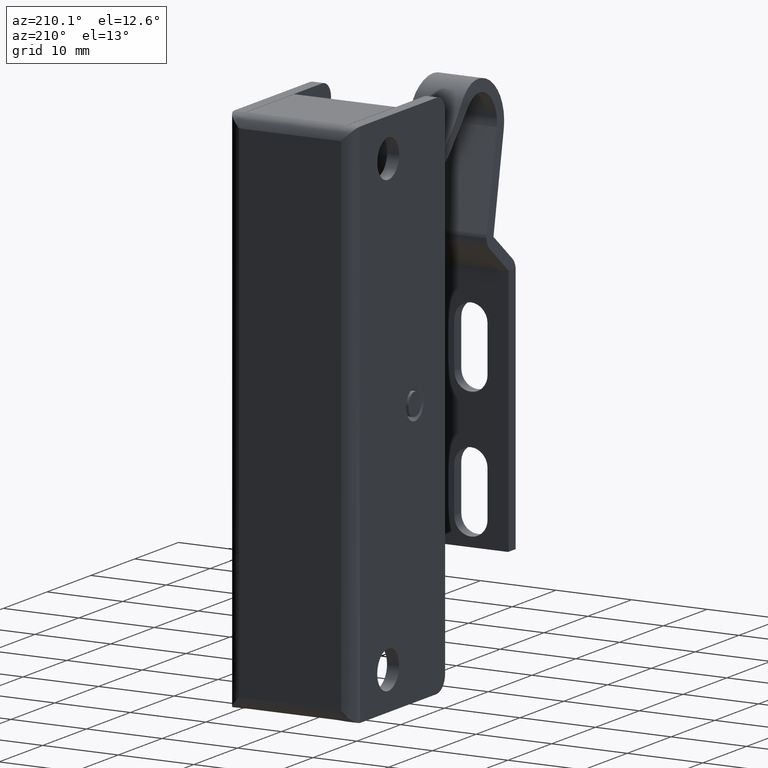
[diagram: clean part render]
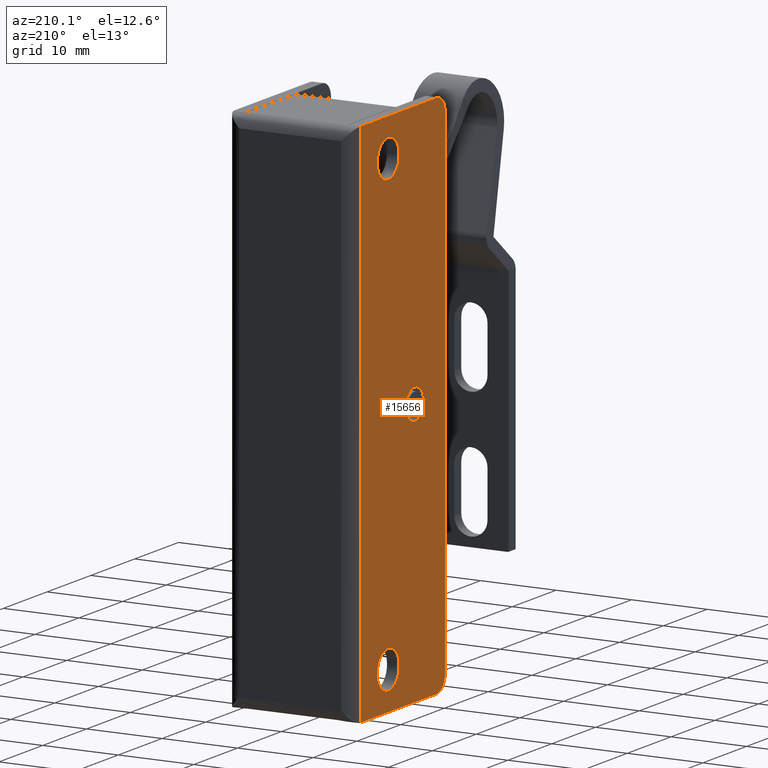
[diagram: same view with one face highlighted and labeled with its STEP entity id]
A machine part, auxiliary view. The second image highlights one B-rep face of the part: STEP entity #15656.
In plain terms, the highlighted face is a freeform B-spline surface patch.
Its self-contained STEP definition (entity closure, byte-faithful):
#12899=CARTESIAN_POINT('',(-8.349997138163136,-4.698172180155018,-31.426501191726430));
#12900=VERTEX_POINT('',#12899);
#12906=CARTESIAN_POINT('',(-8.349997000000000,-6.099989898817020,-31.999999999999869));
#12907=VERTEX_POINT('',#12906);
#12908=CARTESIAN_POINT('',(-8.349997000000000,-6.099989898817020,-31.999999999999869));
#12909=CARTESIAN_POINT('',(-8.349997012758033,-5.970545591312659,-32.000009622498652));
#12910=CARTESIAN_POINT('',(-8.349997043058892,-5.663109701976895,-31.970089592252030));
#12911=CARTESIAN_POINT('',(-8.349997091808977,-5.168486306564616,-31.801986612869548));
#12912=CARTESIAN_POINT('',(-8.349997123382835,-4.848134782484750,-31.574027292666059));
#12913=CARTESIAN_POINT('',(-8.349997138163136,-4.698172180155018,-31.426501191726430));
#12914=B_SPLINE_CURVE_WITH_KNOTS('',3,(#12908,#12909,#12910,#12911,#12912,#12913),.UNSPECIFIED.,.F.,.U.,(4,1,1,4),(0.000000020675283,0.388345068885007,0.922313248117772,1.553380213639104),.UNSPECIFIED.);
#12915=EDGE_CURVE('',#12907,#12900,#12914,.T.);
#12917=CARTESIAN_POINT('',(-8.349997000000000,-8.099991000000175,-30.0));
#12918=VERTEX_POINT('',#12917);
#12919=CARTESIAN_POINT('',(-8.349997000000000,-8.099991000000175,-30.0));
#12920=CARTESIAN_POINT('',(-8.349996999999993,-8.100013009584028,-30.163616665637559));
#12921=CARTESIAN_POINT('',(-8.349997000000005,-8.053625264757615,-30.539980292902229));
#12922=CARTESIAN_POINT('',(-8.349996999999995,-7.851269874938557,-31.012131816831321));
#12923=CARTESIAN_POINT('',(-8.349997000000013,-7.557804929037799,-31.387965984165881));
#12924=CARTESIAN_POINT('',(-8.349997000000020,-7.259038666332838,-31.645712925202599));
#12925=CARTESIAN_POINT('',(-8.349996999999938,-6.930001703225366,-31.832096633552879));
#12926=CARTESIAN_POINT('',(-8.349997000000066,-6.541757395190900,-31.965668954112690));
#12927=CARTESIAN_POINT('',(-8.349997000000000,-6.263613157622911,-32.000039405680162));
#12928=CARTESIAN_POINT('',(-8.349997000000000,-6.099989898817020,-31.999999999999869));
#12929=B_SPLINE_CURVE_WITH_KNOTS('',3,(#12919,#12920,#12921,#12922,#12923,#12924,#12925,#12926,#12927,#12928),.UNSPECIFIED.,.F.,.U.,(4,1,1,1,1,1,1,4),(0.000000053652055,0.490873591092241,1.129053579585303,1.521752345208165,1.914438454833785,2.307165020815178,2.650798572271524,3.141672109330512),.UNSPECIFIED.);
#12930=EDGE_CURVE('',#12918,#12907,#12929,.T.);
#12932=CARTESIAN_POINT('',(-8.349997000000000,-6.099992101182992,-28.000000000000121));
#12933=VERTEX_POINT('',#12932);
#12934=CARTESIAN_POINT('',(-8.349997000000000,-6.099992101182992,-28.000000000000121));
#12935=CARTESIAN_POINT('',(-8.349996999999991,-6.312715302987123,-27.999891509781541));
#12936=CARTESIAN_POINT('',(-8.349997000000018,-6.721711760098346,-28.065880508935329));
#12937=CARTESIAN_POINT('',(-8.349997000000009,-7.209274479763146,-28.311263626846149));
#12938=CARTESIAN_POINT('',(-8.349996999999947,-7.607652154405778,-28.654975880295481));
#12939=CARTESIAN_POINT('',(-8.349997000000103,-7.902957788096984,-29.074145410371809));
#12940=CARTESIAN_POINT('',(-8.349996999999915,-8.069392496460544,-29.558215666745308));
#12941=CARTESIAN_POINT('',(-8.349997000000069,-8.100001891721069,-29.869107116433991));
#12942=CARTESIAN_POINT('',(-8.349997000000000,-8.099991000000175,-30.0));
#12943=B_SPLINE_CURVE_WITH_KNOTS('',3,(#12934,#12935,#12936,#12937,#12938,#12939,#12940,#12941,#12942),.UNSPECIFIED.,.F.,.U.,(4,1,1,1,1,1,4),(0.000000055163239,0.638147662444494,1.227233224617846,1.619919178484715,2.208983068412735,2.748978967292585,3.141670868009645),.UNSPECIFIED.);
#12944=EDGE_CURVE('',#12933,#12918,#12943,.T.);
#12946=CARTESIAN_POINT('',(-8.349996862909309,-4.673490397248271,-28.598181758938900));
#12947=VERTEX_POINT('',#12946);
#12948=CARTESIAN_POINT('',(-8.349996862909309,-4.673490397248271,-28.598181758938900));
#12949=CARTESIAN_POINT('',(-8.349996877389584,-4.824165379394506,-28.444678534258589));
#12950=CARTESIAN_POINT('',(-8.349996904674862,-5.108083237994274,-28.236704124402738));
#12951=CARTESIAN_POINT('',(-8.349996952304393,-5.603694089564937,-28.043215936113150));
#12952=CARTESIAN_POINT('',(-8.349996982509863,-5.917997874130125,-27.999936938773111));
#12953=CARTESIAN_POINT('',(-8.349997000000000,-6.099992101182992,-28.000000000000121));
#12954=B_SPLINE_CURVE_WITH_KNOTS('',3,(#12948,#12949,#12950,#12951,#12952,#12953),.UNSPECIFIED.,.F.,.U.,(4,1,1,4),(0.000000023062797,0.645250037950352,1.042310344280154,1.588291300292114),.UNSPECIFIED.);
#12955=EDGE_CURVE('',#12947,#12933,#12954,.T.);
#13044=CARTESIAN_POINT('',(-8.349997000000000,-4.099990999999824,-30.0));
#13045=VERTEX_POINT('',#13044);
#13046=CARTESIAN_POINT('',(-8.349997000000000,-4.099990999999824,-30.0));
#13047=CARTESIAN_POINT('',(-8.349996979427409,-4.099886176545090,-29.789635342457800));
#13048=CARTESIAN_POINT('',(-8.349996946204850,-4.154109458987285,-29.449918745085370));
#13049=CARTESIAN_POINT('',(-8.349996899599285,-4.362751782796178,-28.973354312713521));
#13050=CARTESIAN_POINT('',(-8.349996875320747,-4.548691176310808,-28.725094784851059));
#13051=CARTESIAN_POINT('',(-8.349996862909309,-4.673490397248271,-28.598181758938900));
#13052=B_SPLINE_CURVE_WITH_KNOTS('',3,(#13046,#13047,#13048,#13049,#13050,#13051),.UNSPECIFIED.,.F.,.U.,(4,1,1,4),(0.000000020637622,0.631067303297811,1.019400830079495,1.553380994222645),.UNSPECIFIED.);
#13053=EDGE_CURVE('',#13045,#12947,#13052,.T.);
#13055=CARTESIAN_POINT('',(-8.349997138163136,-4.698172180155018,-31.426501191726430));
#13056=CARTESIAN_POINT('',(-8.349997125812816,-4.568310973619119,-31.298986993585540));
#13057=CARTESIAN_POINT('',(-8.349997104045857,-4.394906739649393,-31.074248524349670));
#13058=CARTESIAN_POINT('',(-8.349997057672885,-4.165514419419133,-30.595458508105871));
#13059=CARTESIAN_POINT('',(-8.349997024040201,-4.099744951128229,-30.248209732995360));
#13060=CARTESIAN_POINT('',(-8.349997000000000,-4.099990999999824,-30.0));
#13061=B_SPLINE_CURVE_WITH_KNOTS('',3,(#13055,#13056,#13057,#13058,#13059,#13060),.UNSPECIFIED.,.F.,.U.,(4,1,1,4),(0.000000023021734,0.545980713187538,0.843775917027441,1.588290526911709),.UNSPECIFIED.);
#13062=EDGE_CURVE('',#12900,#13045,#13061,.T.);
#13350=CARTESIAN_POINT('',(-8.349996999999831,1.783126274934359,-1.752273358543920));
#13351=VERTEX_POINT('',#13350);
#13357=CARTESIAN_POINT('',(-8.349996999999831,0.000000988489852,-2.499999999999805));
#13358=VERTEX_POINT('',#13357);
#13359=CARTESIAN_POINT('',(-8.349996999999831,0.000000988489852,-2.499999999999805));
#13360=CARTESIAN_POINT('',(-8.349996999999831,0.268860441979965,-2.500153917501178));
#13361=CARTESIAN_POINT('',(-8.349996999999851,0.754766666410233,-2.420835000989500));
#13362=CARTESIAN_POINT('',(-8.349996999999776,1.354860778252514,-2.128772023721546));
#13363=CARTESIAN_POINT('',(-8.349996999999943,1.659932248590946,-1.877661665136766));
#13364=CARTESIAN_POINT('',(-8.349996999999831,1.783126274934359,-1.752273358543920));
#13365=B_SPLINE_CURVE_WITH_KNOTS('',3,(#13359,#13360,#13361,#13362,#13363,#13364),.UNSPECIFIED.,.F.,.U.,(4,1,1,4),(0.000000026759952,0.806544320363227,1.457971999309998,1.985323834558881),.UNSPECIFIED.);
#13366=EDGE_CURVE('',#13358,#13351,#13365,.T.);
#13368=CARTESIAN_POINT('',(-8.349996999999831,-2.500000000000000,0.0));
#13369=VERTEX_POINT('',#13368);
#13370=CARTESIAN_POINT('',(-8.349996999999831,-2.500000000000000,0.0));
#13371=CARTESIAN_POINT('',(-8.349996999999835,-2.500026261505831,-0.214749772214538));
#13372=CARTESIAN_POINT('',(-8.349996999999831,-2.437805615357326,-0.695431608351899));
#13373=CARTESIAN_POINT('',(-8.349996999999835,-2.152392811789030,-1.339259738592888));
#13374=CARTESIAN_POINT('',(-8.349996999999803,-1.664182730882375,-1.912296389597527));
#13375=CARTESIAN_POINT('',(-8.349996999999952,-1.091232905214019,-2.285099511780566));
#13376=CARTESIAN_POINT('',(-8.349996999999656,-0.501090019913716,-2.467903654765984));
#13377=CARTESIAN_POINT('',(-8.349997000000030,-0.153395059002260,-2.500010562600808));
#13378=CARTESIAN_POINT('',(-8.349996999999831,0.000000988489852,-2.499999999999805));
#13379=B_SPLINE_CURVE_WITH_KNOTS('',3,(#13370,#13371,#13372,#13373,#13374,#13375,#13376,#13377,#13378),.UNSPECIFIED.,.F.,.U.,(4,1,1,1,1,1,4),(0.000000099535797,0.644273414665495,1.441960070997785,2.086211593233174,2.883901875165757,3.466822432303120,3.927016014330131),.UNSPECIFIED.);
#13380=EDGE_CURVE('',#13369,#13358,#13379,.T.);
#13382=CARTESIAN_POINT('',(-8.349996999999831,-0.000000988489829,2.499999999999805));
#13383=VERTEX_POINT('',#13382);
#13384=CARTESIAN_POINT('',(-8.349996999999831,-0.000000988489829,2.499999999999805));
#13385=CARTESIAN_POINT('',(-8.349996999999826,-0.184076362230022,2.500034365868101));
#13386=CARTESIAN_POINT('',(-8.349996999999844,-0.511309748620978,2.463685134458711));
#13387=CARTESIAN_POINT('',(-8.349996999999831,-1.010356940582700,2.305609379223167));
#13388=CARTESIAN_POINT('',(-8.349996999999844,-1.495827622164036,2.034585335937357));
#13389=CARTESIAN_POINT('',(-8.349996999999865,-1.923963338933860,1.631887181363500));
#13390=CARTESIAN_POINT('',(-8.349996999999727,-2.252264241388566,1.133995115411912));
#13391=CARTESIAN_POINT('',(-8.349996999999876,-2.453286625914871,0.593128742947717));
#13392=CARTESIAN_POINT('',(-8.349996999999819,-2.500033933506941,0.194303653937882));
#13393=CARTESIAN_POINT('',(-8.349996999999831,-2.500000000000000,0.0));
#13394=B_SPLINE_CURVE_WITH_KNOTS('',3,(#13384,#13385,#13386,#13387,#13388,#13389,#13390,#13391,#13392,#13393),.UNSPECIFIED.,.F.,.U.,(4,1,1,1,1,1,1,4),(0.000000099877864,0.552222480937457,0.981753883218209,1.564673020769735,2.208924696716251,2.730496214057342,3.344106147826427,3.927014900064714),.UNSPECIFIED.);
#13395=EDGE_CURVE('',#13383,#13369,#13394,.T.);
#13397=CARTESIAN_POINT('',(-8.349996999999831,1.752273012747792,1.783125921905574));
#13398=VERTEX_POINT('',#13397);
#13399=CARTESIAN_POINT('',(-8.349996999999831,1.752273012747792,1.783125921905574));
#13400=CARTESIAN_POINT('',(-8.349996999999837,1.564825046389792,1.967547603431924));
#13401=CARTESIAN_POINT('',(-8.349996999999833,1.214414149855419,2.216801698508479));
#13402=CARTESIAN_POINT('',(-8.349996999999830,0.606740012541758,2.448348490706407));
#13403=CARTESIAN_POINT('',(-8.349996999999846,0.222491627855850,2.500069589020484));
#13404=CARTESIAN_POINT('',(-8.349996999999831,-0.000000988489829,2.499999999999805));
#13405=B_SPLINE_CURVE_WITH_KNOTS('',3,(#13399,#13400,#13401,#13402,#13403,#13404),.UNSPECIFIED.,.F.,.U.,(4,1,1,4),(0.000000023954530,0.788818306272644,1.274230119174668,1.941691634684840),.UNSPECIFIED.);
#13406=EDGE_CURVE('',#13398,#13383,#13405,.T.);
#13442=CARTESIAN_POINT('',(-8.349996999999831,2.500000000000000,0.0));
#13443=VERTEX_POINT('',#13442);
#13444=CARTESIAN_POINT('',(-8.349996999999831,2.500000000000000,0.0));
#13445=CARTESIAN_POINT('',(-8.349996999999835,2.500274929323942,0.310247844322085));
#13446=CARTESIAN_POINT('',(-8.349996999999828,2.404444246874268,0.816707115666936));
#13447=CARTESIAN_POINT('',(-8.349996999999831,2.090656707270564,1.404602259712581));
#13448=CARTESIAN_POINT('',(-8.349996999999831,1.862906599279836,1.674421370932765));
#13449=CARTESIAN_POINT('',(-8.349996999999831,1.752273012747792,1.783125921905574));
#13450=B_SPLINE_CURVE_WITH_KNOTS('',3,(#13444,#13445,#13446,#13447,#13448,#13449),.UNSPECIFIED.,.F.,.U.,(4,1,1,4),(0.000000026754043,0.930624547396597,1.520014371891505,1.985324626048432),.UNSPECIFIED.);
#13451=EDGE_CURVE('',#13443,#13398,#13450,.T.);
#13453=CARTESIAN_POINT('',(-8.349996999999831,1.783126274934359,-1.752273358543920));
#13454=CARTESIAN_POINT('',(-8.349996999999839,1.903638049774385,-1.629664901180648));
#13455=CARTESIAN_POINT('',(-8.349996999999828,2.144614494038560,-1.327683143087451));
#13456=CARTESIAN_POINT('',(-8.349996999999846,2.424340074882296,-0.738193750717937));
#13457=CARTESIAN_POINT('',(-8.349996999999823,2.500115416804857,-0.262943776525290));
#13458=CARTESIAN_POINT('',(-8.349996999999831,2.500000000000000,0.0));
#13459=B_SPLINE_CURVE_WITH_KNOTS('',3,(#13453,#13454,#13455,#13456,#13457,#13458),.UNSPECIFIED.,.F.,.U.,(4,1,1,4),(0.000000023948847,0.515761832412516,1.152872878914180,1.941690837279863),.UNSPECIFIED.);
#13460=EDGE_CURVE('',#13351,#13443,#13459,.T.);
#14031=CARTESIAN_POINT('',(-8.349996999999831,1.783126274934359,-61.752273358543917));
#14032=VERTEX_POINT('',#14031);
#14038=CARTESIAN_POINT('',(-8.349996999999831,0.000000988489849,-62.499999999999808));
#14039=VERTEX_POINT('',#14038);
#14040=CARTESIAN_POINT('',(-8.349996999999831,0.000000988489849,-62.499999999999808));
#14041=CARTESIAN_POINT('',(-8.349996999999837,0.310244252831383,-62.500280534145077));
#14042=CARTESIAN_POINT('',(-8.349996999999842,0.837393592326143,-62.400539424029432));
#14043=CARTESIAN_POINT('',(-8.349996999999814,1.422249788283823,-62.079018186111369));
#14044=CARTESIAN_POINT('',(-8.349996999999842,1.688909639550267,-61.848147714269821));
#14045=CARTESIAN_POINT('',(-8.349996999999831,1.783126274934359,-61.752273358543917));
#14046=B_SPLINE_CURVE_WITH_KNOTS('',3,(#14040,#14041,#14042,#14043,#14044,#14045),.UNSPECIFIED.,.F.,.U.,(4,1,1,4),(0.000000026760319,0.930624176349398,1.582056159539571,1.985323834558884),.UNSPECIFIED.);
#14047=EDGE_CURVE('',#14039,#14032,#14046,.T.);
#14049=CARTESIAN_POINT('',(-8.349996999999831,-2.500000000000000,-60.0));
#14050=VERTEX_POINT('',#14049);
#14051=CARTESIAN_POINT('',(-8.349996999999831,-2.500000000000000,-60.0));
#14052=CARTESIAN_POINT('',(-8.349996999999830,-2.500246680963683,-60.296608588218170));
#14053=CARTESIAN_POINT('',(-8.349996999999826,-2.417107104078978,-60.756628012240462));
#14054=CARTESIAN_POINT('',(-8.349996999999828,-2.164620898461596,-61.273753489535700));
#14055=CARTESIAN_POINT('',(-8.349996999999842,-1.884848636409855,-61.665935875785138));
#14056=CARTESIAN_POINT('',(-8.349996999999823,-1.556508395796532,-61.978518319570959));
#14057=CARTESIAN_POINT('',(-8.349996999999853,-1.095354866308496,-62.266620308466408));
#14058=CARTESIAN_POINT('',(-8.349996999999824,-0.593128671153225,-62.453284794890521));
#14059=CARTESIAN_POINT('',(-8.349996999999741,-0.194302677488094,-62.500034319302770));
#14060=CARTESIAN_POINT('',(-8.349996999999831,0.000000988489849,-62.499999999999808));
#14061=B_SPLINE_CURVE_WITH_KNOTS('',3,(#14051,#14052,#14053,#14054,#14055,#14056,#14057,#14058,#14059,#14060),.UNSPECIFIED.,.F.,.U.,(4,1,1,1,1,1,1,4),(0.000000099562362,0.889712482098616,1.380601322575195,1.718091498691015,2.331645298988526,2.730496989417357,3.344107097293614,3.927016014330016),.UNSPECIFIED.);
#14062=EDGE_CURVE('',#14050,#14039,#14061,.T.);
#14064=CARTESIAN_POINT('',(-8.349996999999831,-0.000000988489825,-57.500000000000192));
#14065=VERTEX_POINT('',#14064);
#14066=CARTESIAN_POINT('',(-8.349996999999831,-0.000000988489825,-57.500000000000192));
#14067=CARTESIAN_POINT('',(-8.349996999999839,-0.214763515092867,-57.499945051918118));
#14068=CARTESIAN_POINT('',(-8.349996999999831,-0.541978154971519,-57.542431677810463));
#14069=CARTESIAN_POINT('',(-8.349996999999792,-1.037323271820539,-57.709467310763628));
#14070=CARTESIAN_POINT('',(-8.349996999999936,-1.531821006812870,-57.985453776098169));
#14071=CARTESIAN_POINT('',(-8.349996999999700,-1.988220883978377,-58.436296173702146));
#14072=CARTESIAN_POINT('',(-8.349997000000034,-2.257534059324156,-58.898624988530862));
#14073=CARTESIAN_POINT('',(-8.349996999999659,-2.446180854791110,-59.396702481027290));
#14074=CARTESIAN_POINT('',(-8.349996999999918,-2.500140588370653,-59.744315692305840));
#14075=CARTESIAN_POINT('',(-8.349996999999831,-2.500000000000000,-60.0));
#14076=B_SPLINE_CURVE_WITH_KNOTS('',3,(#14066,#14067,#14068,#14069,#14070,#14071,#14072,#14073,#14074,#14075),.UNSPECIFIED.,.F.,.U.,(4,1,1,1,1,1,1,4),(0.000000099883668,0.644273231985634,0.981753883221026,1.564673020771275,2.331644636788957,2.883901057069761,3.160026186490423,3.927014900064734),.UNSPECIFIED.);
#14077=EDGE_CURVE('',#14065,#14050,#14076,.T.);
#14079=CARTESIAN_POINT('',(-8.349996999999831,1.752273012747796,-58.216874078094428));
#14080=VERTEX_POINT('',#14079);
#14081=CARTESIAN_POINT('',(-8.349996999999831,1.752273012747796,-58.216874078094428));
#14082=CARTESIAN_POINT('',(-8.349996999999830,1.593628839307305,-58.060877324528413));
#14083=CARTESIAN_POINT('',(-8.349996999999831,1.283311593742524,-57.828444227494572));
#14084=CARTESIAN_POINT('',(-8.349996999999831,0.687594486730220,-57.567670692520103));
#14085=CARTESIAN_POINT('',(-8.349996999999835,0.262959216365265,-57.499845173754153));
#14086=CARTESIAN_POINT('',(-8.349996999999831,-0.000000988489825,-57.500000000000192));
#14087=B_SPLINE_CURVE_WITH_KNOTS('',3,(#14081,#14082,#14083,#14084,#14085,#14086),.UNSPECIFIED.,.F.,.U.,(4,1,1,4),(0.000000023953149,0.667461539435292,1.152873352336313,1.941691634684869),.UNSPECIFIED.);
#14088=EDGE_CURVE('',#14080,#14065,#14087,.T.);
#14124=CARTESIAN_POINT('',(-8.349996999999831,2.500000000000000,-60.0));
#14125=VERTEX_POINT('',#14124);
#14126=CARTESIAN_POINT('',(-8.349996999999831,2.500000000000000,-60.0));
#14127=CARTESIAN_POINT('',(-8.349996999999847,2.500045170811333,-59.793192910209072));
#14128=CARTESIAN_POINT('',(-8.349996999999805,2.453539893631557,-59.420975715103353));
#14129=CARTESIAN_POINT('',(-8.349996999999867,2.227149572153463,-58.795636068640292));
#14130=CARTESIAN_POINT('',(-8.349996999999839,1.958946286961797,-58.419681948371540));
#14131=CARTESIAN_POINT('',(-8.349996999999831,1.752273012747796,-58.216874078094428));
#14132=B_SPLINE_CURVE_WITH_KNOTS('',3,(#14126,#14127,#14128,#14129,#14130,#14131),.UNSPECIFIED.,.F.,.U.,(4,1,1,4),(0.000000026755439,0.620417847043778,1.116739431606724,1.985324626048429),.UNSPECIFIED.);
#14133=EDGE_CURVE('',#14125,#14080,#14132,.T.);
#14135=CARTESIAN_POINT('',(-8.349996999999831,1.783126274934359,-61.752273358543917));
#14136=CARTESIAN_POINT('',(-8.349996999999810,1.903638056506191,-61.629664508170158));
#14137=CARTESIAN_POINT('',(-8.349996999999855,2.144614512664977,-61.327683716452803));
#14138=CARTESIAN_POINT('',(-8.349996999999835,2.424340144206873,-60.738193222252349));
#14139=CARTESIAN_POINT('',(-8.349996999999808,2.500115297976890,-60.262943942115768));
#14140=CARTESIAN_POINT('',(-8.349996999999831,2.500000000000000,-60.0));
#14141=B_SPLINE_CURVE_WITH_KNOTS('',3,(#14135,#14136,#14137,#14138,#14139,#14140),.UNSPECIFIED.,.F.,.U.,(4,1,1,4),(0.000000023948837,0.515761832412603,1.152872878914269,1.941690837279861),.UNSPECIFIED.);
#14142=EDGE_CURVE('',#14032,#14125,#14141,.T.);
#14515=CARTESIAN_POINT('',(-8.349997000000000,6.400000000000000,5.0));
#14516=VERTEX_POINT('',#14515);
#14568=CARTESIAN_POINT('',(-8.349997000000000,6.400000000000000,-65.0));
#14569=VERTEX_POINT('',#14568);
#14752=CARTESIAN_POINT('',(-8.349997000000000,6.400000000000000,5.0));
#14753=CARTESIAN_POINT('',(-8.349997000000000,6.400000000000000,-65.0));
#14754=QUASI_UNIFORM_CURVE('',1,(#14752,#14753),.UNSPECIFIED.,.F.,.U.);
#14755=EDGE_CURVE('',#14516,#14569,#14754,.T.);
#14853=CARTESIAN_POINT('',(-8.349997000000000,-13.0,-63.0));
#14854=VERTEX_POINT('',#14853);
#14860=CARTESIAN_POINT('',(-8.349997000000000,-11.0,-65.0));
#14861=VERTEX_POINT('',#14860);
#14862=CARTESIAN_POINT('',(-8.349997000000000,-11.0,-65.0));
#14863=CARTESIAN_POINT('',(-8.349997000000025,-11.245475545528100,-65.000217516722486));
#14864=CARTESIAN_POINT('',(-8.349996999999979,-11.588930625912299,-64.935946082714125));
#14865=CARTESIAN_POINT('',(-8.349997000000020,-12.019035298146671,-64.732434901722002));
#14866=CARTESIAN_POINT('',(-8.349996999999982,-12.314775617412939,-64.524185731249489));
#14867=CARTESIAN_POINT('',(-8.349997000000055,-12.564172884738440,-64.262210746559191));
#14868=CARTESIAN_POINT('',(-8.349996999999958,-12.764702821316460,-63.962090813017006));
#14869=CARTESIAN_POINT('',(-8.349997000000020,-12.944651278954140,-63.556264146396330));
#14870=CARTESIAN_POINT('',(-8.349997000000018,-13.000113114793191,-63.212725691034862));
#14871=CARTESIAN_POINT('',(-8.349997000000000,-13.0,-63.0));
#14872=B_SPLINE_CURVE_WITH_KNOTS('',3,(#14862,#14863,#14864,#14865,#14866,#14867,#14868,#14869,#14870,#14871),.UNSPECIFIED.,.F.,.U.,(4,1,1,1,1,1,1,4),(0.000000054405904,0.736328847892224,1.030870930777114,1.423582770728817,1.816261475816495,2.110800612301387,2.503523755140696,3.141671488669902),.UNSPECIFIED.);
#14873=EDGE_CURVE('',#14861,#14854,#14872,.T.);
#14914=CARTESIAN_POINT('',(-8.349997000000000,-11.0,5.0));
#14915=VERTEX_POINT('',#14914);
#14921=CARTESIAN_POINT('',(-8.349997000000000,-13.0,3.0));
#14922=VERTEX_POINT('',#14921);
#14923=CARTESIAN_POINT('',(-8.349997000000000,-13.0,3.0));
#14924=CARTESIAN_POINT('',(-8.349996999999998,-13.000202121048350,3.245477238974492));
#14925=CARTESIAN_POINT('',(-8.349997000000000,-12.929805672925420,3.621621945522119));
#14926=CARTESIAN_POINT('',(-8.349997000000009,-12.671069011592660,4.135674107671173));
#14927=CARTESIAN_POINT('',(-8.349996999999990,-12.325408366470290,4.536508880040158));
#14928=CARTESIAN_POINT('',(-8.349997000000014,-11.906125422824919,4.801924098738067));
#14929=CARTESIAN_POINT('',(-8.349996999999986,-11.458112014269460,4.962174857631366));
#14930=CARTESIAN_POINT('',(-8.349996999999995,-11.179993142839409,5.000065530978456));
#14931=CARTESIAN_POINT('',(-8.349997000000000,-11.0,5.0));
#14932=B_SPLINE_CURVE_WITH_KNOTS('',3,(#14923,#14924,#14925,#14926,#14927,#14928,#14929,#14930,#14931),.UNSPECIFIED.,.F.,.U.,(4,1,1,1,1,1,4),(0.000000054409882,0.736328847894424,1.129053357148898,1.718088772350233,2.307164565024429,2.601706647908639,3.141671488669911),.UNSPECIFIED.);
#14933=EDGE_CURVE('',#14922,#14915,#14932,.T.);
#15400=CARTESIAN_POINT('',(-8.349997000000000,-11.0,5.0));
#15401=CARTESIAN_POINT('',(-8.349997000000000,6.400000000000000,5.0));
#15402=QUASI_UNIFORM_CURVE('',1,(#15400,#15401),.UNSPECIFIED.,.F.,.U.);
#15403=EDGE_CURVE('',#14915,#14516,#15402,.T.);
#15440=CARTESIAN_POINT('',(-8.349997000000000,-13.0,-63.0));
#15441=CARTESIAN_POINT('',(-8.349997000000000,-13.0,3.0));
#15442=QUASI_UNIFORM_CURVE('',1,(#15440,#15441),.UNSPECIFIED.,.F.,.U.);
#15443=EDGE_CURVE('',#14854,#14922,#15442,.T.);
#15615=CARTESIAN_POINT('',(-8.349997000000000,-13.969029962399039,-68.496499864326410));
#15616=CARTESIAN_POINT('',(-8.349997000000000,7.369030482747587,-68.496499864326410));
#15617=CARTESIAN_POINT('',(-8.349997000000000,-13.969029962399039,8.496501741872718));
#15618=CARTESIAN_POINT('',(-8.349997000000000,7.369030482747587,8.496501741872718));
#15619=B_SPLINE_SURFACE_WITH_KNOTS('',1,1,((#15615,#15617),(#15616,#15618)),.UNSPECIFIED.,.F.,.F.,.U.,(2,2),(2,2),(0.0,21.338060445146631),(0.0,76.993001606199130),.UNSPECIFIED.);
#15620=ORIENTED_EDGE('',*,*,#15403,.T.);
#15621=ORIENTED_EDGE('',*,*,#14755,.T.);
#15622=CARTESIAN_POINT('',(-8.349997000000000,-11.0,-65.0));
#15623=CARTESIAN_POINT('',(-8.349997000000000,6.400000000000000,-65.0));
#15624=QUASI_UNIFORM_CURVE('',1,(#15622,#15623),.UNSPECIFIED.,.F.,.U.);
#15625=EDGE_CURVE('',#14861,#14569,#15624,.T.);
#15626=ORIENTED_EDGE('',*,*,#15625,.F.);
#15627=ORIENTED_EDGE('',*,*,#14873,.T.);
#15628=ORIENTED_EDGE('',*,*,#15443,.T.);
#15629=ORIENTED_EDGE('',*,*,#14933,.T.);
#15630=EDGE_LOOP('',(#15620,#15621,#15626,#15627,#15628,#15629));
#15631=FACE_OUTER_BOUND('',#15630,.T.);
#15632=ORIENTED_EDGE('',*,*,#13395,.T.);
#15633=ORIENTED_EDGE('',*,*,#13380,.T.);
#15634=ORIENTED_EDGE('',*,*,#13366,.T.);
#15635=ORIENTED_EDGE('',*,*,#13460,.T.);
#15636=ORIENTED_EDGE('',*,*,#13451,.T.);
#15637=ORIENTED_EDGE('',*,*,#13406,.T.);
#15638=EDGE_LOOP('',(#15632,#15633,#15634,#15635,#15636,#15637));
#15639=FACE_BOUND('',#15638,.T.);
#15640=ORIENTED_EDGE('',*,*,#14077,.T.);
#15641=ORIENTED_EDGE('',*,*,#14062,.T.);
#15642=ORIENTED_EDGE('',*,*,#14047,.T.);
#15643=ORIENTED_EDGE('',*,*,#14142,.T.);
#15644=ORIENTED_EDGE('',*,*,#14133,.T.);
#15645=ORIENTED_EDGE('',*,*,#14088,.T.);
#15646=EDGE_LOOP('',(#15640,#15641,#15642,#15643,#15644,#15645));
#15647=FACE_BOUND('',#15646,.T.);
#15648=ORIENTED_EDGE('',*,*,#12944,.T.);
#15649=ORIENTED_EDGE('',*,*,#12930,.T.);
#15650=ORIENTED_EDGE('',*,*,#12915,.T.);
#15651=ORIENTED_EDGE('',*,*,#13062,.T.);
#15652=ORIENTED_EDGE('',*,*,#13053,.T.);
#15653=ORIENTED_EDGE('',*,*,#12955,.T.);
#15654=EDGE_LOOP('',(#15648,#15649,#15650,#15651,#15652,#15653));
#15655=FACE_BOUND('',#15654,.T.);
#15656=ADVANCED_FACE('',(#15631,#15639,#15647,#15655),#15619,.F.);